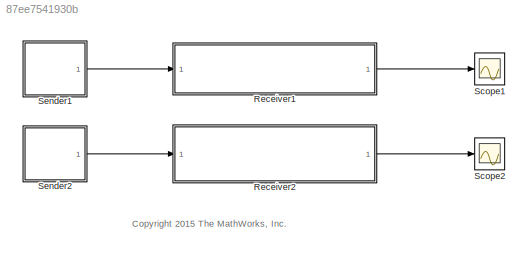
MODEL slx_87ee7541930b
KIND model
CONFIG AbsTol = auto
CONFIG EnableMultiTasking = on
CONFIG FixedStep = 1
CONFIG MaxStep = auto
CONFIG MinStep = auto
CONFIG RelTol = 1e-3
CONFIG SampleTimeConstraint = Unconstrained
CONFIG Solver = FixedStepDiscrete
CONFIG SolverName = FixedStepDiscrete
CONFIG StartTime = 0.0
CONFIG StopTime = 10.0
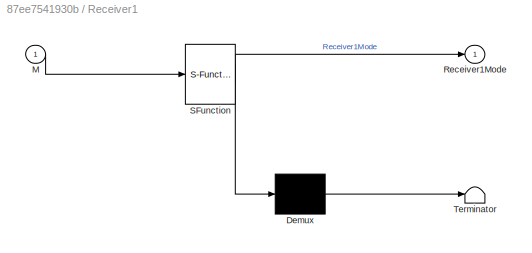
BLOCK [SubSystem] Receiver1
  ErrorFcn = Stateflow.Translate.translate
  PermitHierarchicalResolution = ExplicitOnly
  Ports = [1, 1]
  RequestExecContextInheritance = off
  SFBlockType = Chart
  TreatAsAtomicUnit = on
  Variant = off
BLOCK [Demux] Receiver1/ Demux 
  Outputs = 1
  Ports = [1, 1]
BLOCK [S-Function] Receiver1/ SFunction 
  EnableBusSupport = off
  FunctionName = sf_sfun
  PortCounts = [1 2]
  Ports = [1, 2]
  SFcnIsStateOwnerBlock = off
  SFunctionDeploymentMode = off
  Tag = Stateflow S-Function sf_msg_data_syntax_and_lifetime 3
BLOCK [Terminator] Receiver1/ Terminator 
BLOCK [Inport] Receiver1/M
  IconDisplay = Port number
BLOCK [Outport] Receiver1/Receiver1Mode
  IconDisplay = Port number
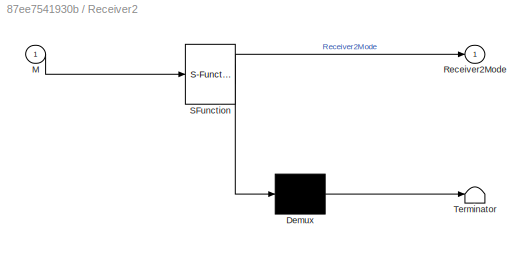
BLOCK [SubSystem] Receiver2
  ErrorFcn = Stateflow.Translate.translate
  PermitHierarchicalResolution = ExplicitOnly
  Ports = [1, 1]
  RequestExecContextInheritance = off
  SFBlockType = Chart
  TreatAsAtomicUnit = on
  Variant = off
BLOCK [Demux] Receiver2/ Demux 
  Outputs = 1
  Ports = [1, 1]
BLOCK [S-Function] Receiver2/ SFunction 
  EnableBusSupport = off
  FunctionName = sf_sfun
  PortCounts = [1 2]
  Ports = [1, 2]
  SFcnIsStateOwnerBlock = off
  SFunctionDeploymentMode = off
  Tag = Stateflow S-Function sf_msg_data_syntax_and_lifetime 2
BLOCK [Terminator] Receiver2/ Terminator 
BLOCK [Inport] Receiver2/M
  IconDisplay = Port number
BLOCK [Outport] Receiver2/Receiver2Mode
  IconDisplay = Port number
BLOCK [Scope] Scope1
  NumInputPorts = 1
  Ports = [1]
  ScopeSpecificationString = Simulink.scopes.TimeScopeBlockCfg('CurrentConfiguration', extmgr.ConfigurationSet(extmgr.Configuration('Core','General UI',true,'FigureColor',[0.156862745098039 0.156862745098039 0.156862745098039],'ShowStatusbar',false),extmgr.Configuration('Core','Source UI',true),extmgr.Configuration('Sources','WiredSimulink',true,'DataLoggingSaveFormat','StructureWithTime','DataLoggingLimitDataPoints',true,'Da...<+2799ch>
BLOCK [Scope] Scope2
  NumInputPorts = 1
  Ports = [1]
  ScopeSpecificationString = Simulink.scopes.TimeScopeBlockCfg('CurrentConfiguration', extmgr.ConfigurationSet(extmgr.Configuration('Core','General UI',true,'FigureColor',[0.156862745098039 0.156862745098039 0.156862745098039],'ShowStatusbar',false),extmgr.Configuration('Core','Source UI',true),extmgr.Configuration('Sources','WiredSimulink',true,'DataLoggingSaveFormat','StructureWithTime','DataLoggingLimitDataPoints',true,'Da...<+2737ch>
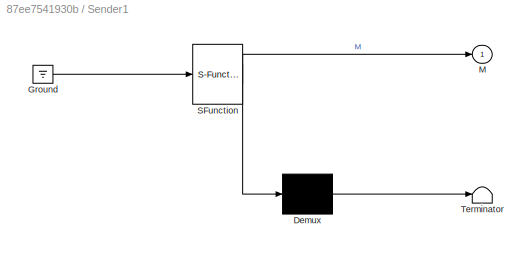
BLOCK [SubSystem] Sender1
  ErrorFcn = Stateflow.Translate.translate
  PermitHierarchicalResolution = ExplicitOnly
  Ports = [0, 1]
  RequestExecContextInheritance = off
  SFBlockType = Chart
  TreatAsAtomicUnit = on
  Variant = off
BLOCK [Demux] Sender1/ Demux 
  Outputs = 1
  Ports = [1, 1]
BLOCK [Ground] Sender1/ Ground 
BLOCK [S-Function] Sender1/ SFunction 
  EnableBusSupport = off
  FunctionName = sf_sfun
  PortCounts = [1 2]
  Ports = [1, 2]
  SFcnIsStateOwnerBlock = off
  SFunctionDeploymentMode = off
  Tag = Stateflow S-Function sf_msg_data_syntax_and_lifetime 4
BLOCK [Terminator] Sender1/ Terminator 
BLOCK [Outport] Sender1/M
  IconDisplay = Port number
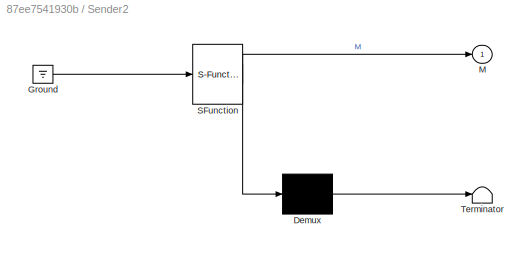
BLOCK [SubSystem] Sender2
  ErrorFcn = Stateflow.Translate.translate
  PermitHierarchicalResolution = ExplicitOnly
  Ports = [0, 1]
  RequestExecContextInheritance = off
  SFBlockType = Chart
  TreatAsAtomicUnit = on
  Variant = off
BLOCK [Demux] Sender2/ Demux 
  Outputs = 1
  Ports = [1, 1]
BLOCK [Ground] Sender2/ Ground 
BLOCK [S-Function] Sender2/ SFunction 
  EnableBusSupport = off
  FunctionName = sf_sfun
  PortCounts = [1 2]
  Ports = [1, 2]
  SFcnIsStateOwnerBlock = off
  SFunctionDeploymentMode = off
  Tag = Stateflow S-Function sf_msg_data_syntax_and_lifetime 1
BLOCK [Terminator] Sender2/ Terminator 
BLOCK [Outport] Sender2/M
  IconDisplay = Port number
ANNOTATION (root): <copyright redacted>
LINE Receiver1:1 -> Scope1:1
LINE Receiver2:1 -> Scope2:1
LINE Sender1:1 -> Receiver1:1
LINE Sender2:1 -> Receiver2:1
CHART Sender2 states=1 transitions=1
  STATE_LABEL 'A\nen:\nM.data = 3; \nsend(M);\nM.data = 5;\nsend(M);'
CHART Receiver2 states=4 transitions=6
  STATE_LABEL 'B'
  STATE_LABEL 'B1'
  STATE_LABEL 'B2'
  STATE_LABEL 'M[M.data == 3]'
  STATE_LABEL 'B1'
  STATE_LABEL 'B2'
  STATE_LABEL 'A\n'
CHART Receiver1 states=2 transitions=2
  STATE_LABEL 'A\n'
  STATE_LABEL 'B\n'
CHART Sender1 states=2 transitions=2
  STATE_LABEL 'A\nen: \nM.data = 3;\nsend(M);'
  STATE_LABEL 'B\nen: \nM.data = 5;\nsend(M);'
